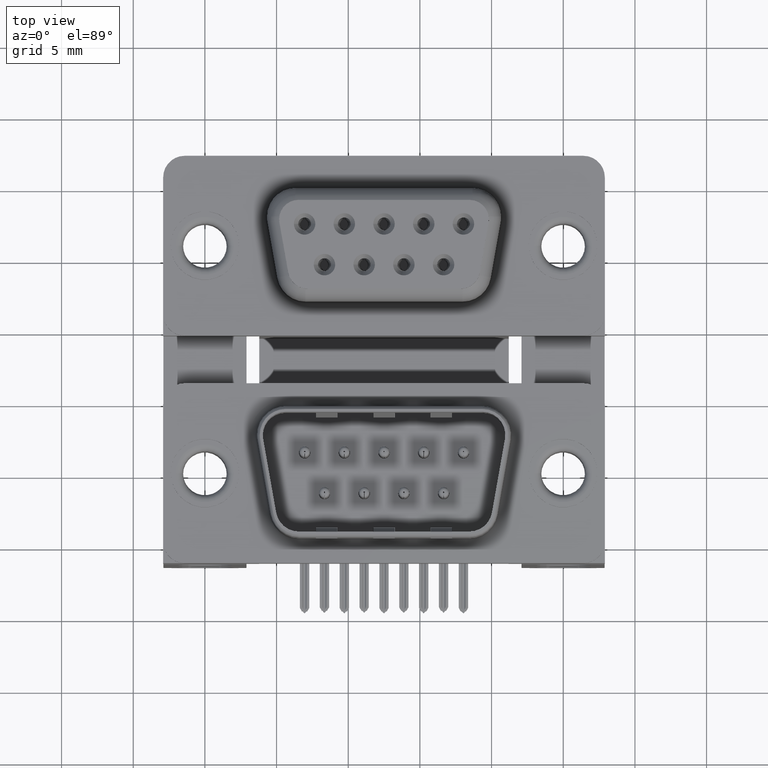
[diagram: clean part render]
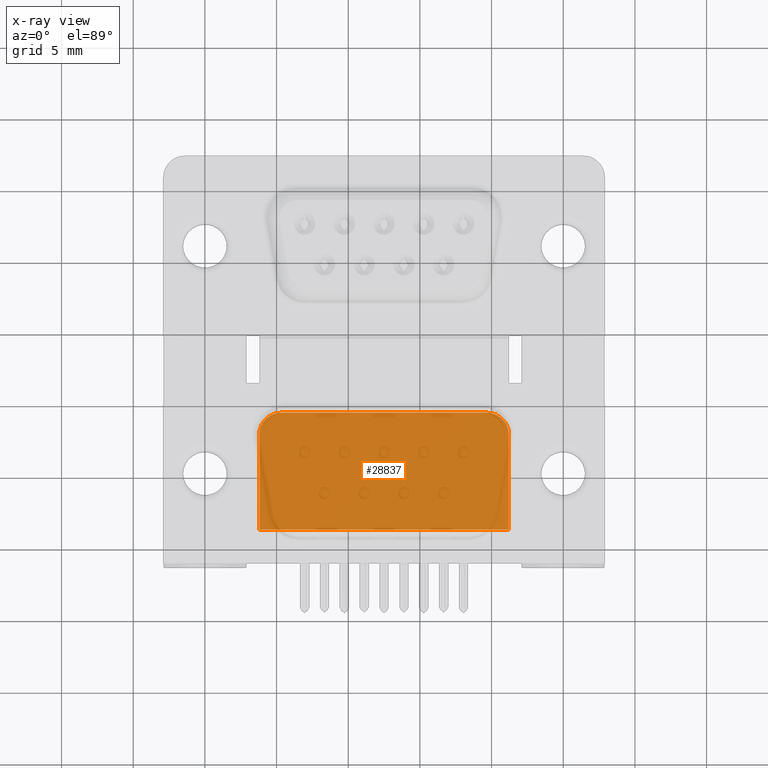
[diagram: x-ray — body ghosted, one internal face saturated and labeled with its STEP entity id]
A machine part, top view, then the same camera in x-ray: the body is ghosted and one INTERNAL B-rep face — a face not visible from any outside direction — is saturated and labeled: STEP entity #28837.
In plain terms, the highlighted planar face has unit normal (0, 0, -1).
Its self-contained STEP definition (entity closure, byte-faithful):
#424 = AXIS2_PLACEMENT_3D ( 'NONE', #14774, #31294, #20576 ) ;
#660 = VECTOR ( 'NONE', #6477, 1000.000000000000000 ) ;
#664 = LINE ( 'NONE', #1003, #660 ) ;
#934 = VERTEX_POINT ( 'NONE', #14023 ) ;
#1003 = CARTESIAN_POINT ( 'NONE',  ( 5.289999999999998259, 4.424999999999989164, -12.00000000000000000 ) ) ;
#1188 = DIRECTION ( 'NONE',  ( 9.427844978134828829E-17, 1.000000000000000000, 0.0000000000000000000 ) ) ;
#2179 = CARTESIAN_POINT ( 'NONE',  ( 21.19999999999999574, -6.275000000000003020, -12.00000000000000000 ) ) ;
#2351 = CARTESIAN_POINT ( 'NONE',  ( 22.08999999999999275, -3.734999999999998987, -12.00000000000000000 ) ) ;
#3634 = CARTESIAN_POINT ( 'NONE',  ( 21.19999999999999574, -3.734999999999998987, -12.00000000000000000 ) ) ;
#5548 = DIRECTION ( 'NONE',  ( 0.0000000000000000000, 0.0000000000000000000, -1.000000000000000000 ) ) ;
#6405 = CARTESIAN_POINT ( 'NONE',  ( 5.289999999999998259, 4.424999999999989164, -12.00000000000000000 ) ) ;
#6477 = DIRECTION ( 'NONE',  ( 1.000000000000000000, 0.0000000000000000000, 0.0000000000000000000 ) ) ;
#6480 = ORIENTED_EDGE ( 'NONE', *, *, #19733, .F. ) ;
#6710 = DIRECTION ( 'NONE',  ( -1.000000000000000000, 0.0000000000000000000, -0.0000000000000000000 ) ) ;
#6842 = EDGE_CURVE ( 'NONE', #15873, #7795, #664, .T. ) ;
#7047 = CARTESIAN_POINT ( 'NONE',  ( 21.19999999999999218, 2.924999999999990052, -12.00000000000000000 ) ) ;
#7795 = VERTEX_POINT ( 'NONE', #29030 ) ;
#11911 = EDGE_LOOP ( 'NONE', ( #6480, #31924, #32061, #26221, #23612, #32674 ) ) ;
#13293 = DIRECTION ( 'NONE',  ( 3.771137991253931532E-16, -1.000000000000000000, -0.0000000000000000000 ) ) ;
#13480 = CARTESIAN_POINT ( 'NONE',  ( 5.289999999999998259, 2.924999999999990052, -12.00000000000000000 ) ) ;
#13827 = EDGE_CURVE ( 'NONE', #24806, #934, #27786, .T. ) ;
#13879 = CIRCLE ( 'NONE', #27351, 1.499999999999999556 ) ;
#14023 = CARTESIAN_POINT ( 'NONE',  ( 3.789999999999997371, 2.924999999999990052, -12.00000000000000000 ) ) ;
#14774 = CARTESIAN_POINT ( 'NONE',  ( 19.69999999999999574, 2.924999999999990052, -12.00000000000000000 ) ) ;
#15873 = VERTEX_POINT ( 'NONE', #6405 ) ;
#19733 = EDGE_CURVE ( 'NONE', #24806, #31709, #27003, .T. ) ;
#20052 = CARTESIAN_POINT ( 'NONE',  ( 3.789999999999996483, -6.275000000000003020, -12.00000000000000000 ) ) ;
#20576 = DIRECTION ( 'NONE',  ( -1.000000000000000000, 0.0000000000000000000, 0.0000000000000000000 ) ) ;
#21560 = CARTESIAN_POINT ( 'NONE',  ( 3.789999999999996927, -3.734999999999998987, -12.00000000000000000 ) ) ;
#22875 = CARTESIAN_POINT ( 'NONE',  ( 5.289999999999998259, 2.924999999999990052, -12.00000000000000000 ) ) ;
#23060 = DIRECTION ( 'NONE',  ( 0.0000000000000000000, 0.0000000000000000000, -1.000000000000000000 ) ) ;
#23408 = FACE_OUTER_BOUND ( 'NONE', #11911, .T. ) ;
#23468 = CIRCLE ( 'NONE', #424, 1.499999999999997780 ) ;
#23612 = ORIENTED_EDGE ( 'NONE', *, *, #30322, .T. ) ;
#23856 = EDGE_CURVE ( 'NONE', #934, #15873, #13879, .T. ) ;
#24806 = VERTEX_POINT ( 'NONE', #21560 ) ;
#26221 = ORIENTED_EDGE ( 'NONE', *, *, #6842, .T. ) ;
#26478 = DIRECTION ( 'NONE',  ( -1.000000000000000000, 0.0000000000000000000, 0.0000000000000000000 ) ) ;
#27003 = LINE ( 'NONE', #2351, #34728 ) ;
#27351 = AXIS2_PLACEMENT_3D ( 'NONE', #13480, #5548, #26478 ) ;
#27786 = LINE ( 'NONE', #20052, #30063 ) ;
#27905 = VERTEX_POINT ( 'NONE', #7047 ) ;
#28837 = ADVANCED_FACE ( 'NONE', ( #23408 ), #34143, .T. ) ;
#28932 = DIRECTION ( 'NONE',  ( 1.000000000000000000, -0.0000000000000000000, -0.0000000000000000000 ) ) ;
#29030 = CARTESIAN_POINT ( 'NONE',  ( 19.69999999999999574, 4.424999999999988276, -12.00000000000000000 ) ) ;
#30063 = VECTOR ( 'NONE', #1188, 1000.000000000000000 ) ;
#30322 = EDGE_CURVE ( 'NONE', #7795, #27905, #23468, .T. ) ;
#31294 = DIRECTION ( 'NONE',  ( 0.0000000000000000000, 0.0000000000000000000, -1.000000000000000000 ) ) ;
#31467 = VECTOR ( 'NONE', #13293, 1000.000000000000000 ) ;
#31575 = LINE ( 'NONE', #2179, #31467 ) ;
#31709 = VERTEX_POINT ( 'NONE', #3634 ) ;
#31924 = ORIENTED_EDGE ( 'NONE', *, *, #13827, .T. ) ;
#32061 = ORIENTED_EDGE ( 'NONE', *, *, #23856, .T. ) ;
#32511 = EDGE_CURVE ( 'NONE', #27905, #31709, #31575, .T. ) ;
#32674 = ORIENTED_EDGE ( 'NONE', *, *, #32511, .T. ) ;
#32868 = AXIS2_PLACEMENT_3D ( 'NONE', #22875, #23060, #6710 ) ;
#34143 = PLANE ( 'NONE',  #32868 ) ;
#34728 = VECTOR ( 'NONE', #28932, 1000.000000000000000 ) ;